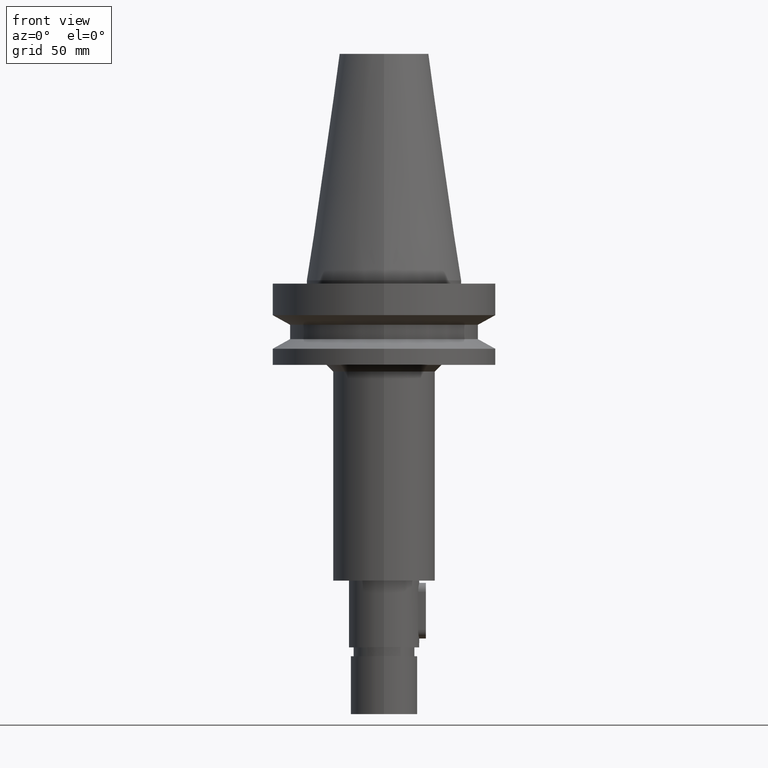
[diagram: clean part render]
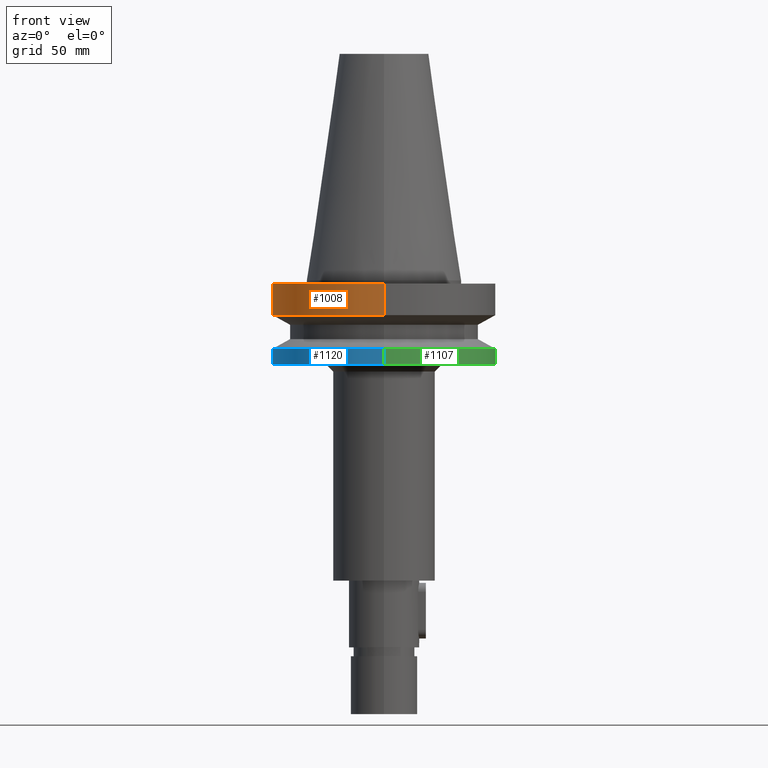
[diagram: same view with three faces highlighted in distinct colors, each labeled with its STEP entity id]
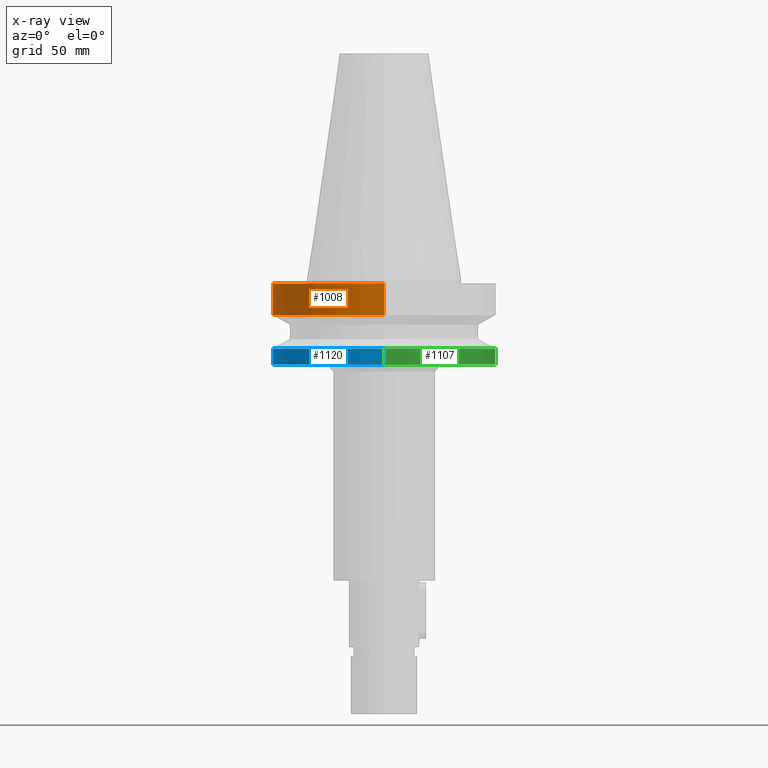
[diagram: x-ray of the same camera — body ghosted, the three highlighted faces saturated]
A machine part, front view with three faces highlighted in distinct colors.
The next image is the same camera in x-ray (body ghosted, the three faces saturated) — at least one of them is partly hidden behind the body in this view.
Their STEP definitions:

[orange] entity #1008 — the highlighted cylindrical surface (partial cylindrical patch) has radius 50 mm, axis along (0, 0, -1).
#178=CARTESIAN_POINT('',(0.E0,2.653074825673E-14,-1.5E0));
#179=DIRECTION('',(0.E0,0.E0,-1.E0));
#180=DIRECTION('',(0.E0,-1.E0,0.E0));
#181=AXIS2_PLACEMENT_3D('',#178,#179,#180);
#202=DIRECTION('',(0.E0,-1.605441053570E-14,-1.E0));
#203=VECTOR('',#202,1.416269223573E1);
#204=CARTESIAN_POINT('',(0.E0,5.E1,-1.5E0));
#205=LINE('',#204,#203);
#209=DIRECTION('',(0.E0,1.555271020646E-14,-1.E0));
#210=VECTOR('',#209,1.416269223573E1);
#211=CARTESIAN_POINT('',(0.E0,-5.E1,-1.5E0));
#212=LINE('',#211,#210);
#216=CARTESIAN_POINT('',(0.E0,1.006319759054E-14,-1.566269223573E1));
#217=DIRECTION('',(0.E0,0.E0,1.E0));
#218=DIRECTION('',(0.E0,1.E0,0.E0));
#219=AXIS2_PLACEMENT_3D('',#216,#217,#218);
#730=CARTESIAN_POINT('',(0.E0,5.E1,-1.5E0));
#731=CARTESIAN_POINT('',(0.E0,-5.E1,-1.5E0));
#732=VERTEX_POINT('',#730);
#733=VERTEX_POINT('',#731);
#734=CARTESIAN_POINT('',(0.E0,5.E1,-1.566269223573E1));
#735=VERTEX_POINT('',#734);
#736=CARTESIAN_POINT('',(1.224646799147E-14,-5.E1,-1.566269223573E1));
#737=VERTEX_POINT('',#736);
#996=CARTESIAN_POINT('',(0.E0,2.653074825673E-14,1.1664E2));
#997=DIRECTION('',(0.E0,0.E0,-1.E0));
#998=DIRECTION('',(0.E0,-1.E0,0.E0));
#999=AXIS2_PLACEMENT_3D('',#996,#997,#998);
#1000=CYLINDRICAL_SURFACE('',#999,5.E1);
#1001=ORIENTED_EDGE('',*,*,#986,.F.);
#1002=ORIENTED_EDGE('',*,*,#972,.F.);
#1003=ORIENTED_EDGE('',*,*,#990,.T.);
#1005=ORIENTED_EDGE('',*,*,#1004,.F.);
#1006=EDGE_LOOP('',(#1001,#1002,#1003,#1005));
#1007=FACE_OUTER_BOUND('',#1006,.F.);
#182=CIRCLE('',#181,5.E1);
#220=CIRCLE('',#219,5.E1);
#972=EDGE_CURVE('',#733,#732,#182,.T.);
#986=EDGE_CURVE('',#732,#735,#205,.T.);
#990=EDGE_CURVE('',#733,#737,#212,.T.);
#1004=EDGE_CURVE('',#735,#737,#220,.T.);
#1008=ADVANCED_FACE('',(#1007),#1000,.T.);

[blue] entity #1120 — the highlighted cylindrical surface (partial cylindrical patch) has radius 50 mm, axis along (0, 0, -1).
#291=CARTESIAN_POINT('',(0.E0,0.E0,-3.073730776427E1));
#292=DIRECTION('',(0.E0,0.E0,-1.E0));
#293=DIRECTION('',(0.E0,-1.E0,0.E0));
#294=AXIS2_PLACEMENT_3D('',#291,#292,#293);
#322=DIRECTION('',(0.E0,3.130707843087E-14,-1.E0));
#323=VECTOR('',#322,7.262692235730E0);
#324=CARTESIAN_POINT('',(0.E0,5.E1,-3.073730776427E1));
#325=LINE('',#324,#323);
#329=DIRECTION('',(0.E0,-3.032873222990E-14,-1.E0));
#330=VECTOR('',#329,7.262692235730E0);
#331=CARTESIAN_POINT('',(0.E0,-5.E1,-3.073730776427E1));
#332=LINE('',#331,#330);
#336=CARTESIAN_POINT('',(0.E0,2.653074825673E-14,-3.8E1));
#337=DIRECTION('',(0.E0,0.E0,1.E0));
#338=DIRECTION('',(0.E0,1.E0,0.E0));
#339=AXIS2_PLACEMENT_3D('',#336,#337,#338);
#746=CARTESIAN_POINT('',(0.E0,5.E1,-3.073730776427E1));
#747=VERTEX_POINT('',#746);
#748=CARTESIAN_POINT('',(0.E0,-5.E1,-3.073730776427E1));
#749=VERTEX_POINT('',#748);
#750=CARTESIAN_POINT('',(0.E0,5.E1,-3.8E1));
#751=VERTEX_POINT('',#750);
#752=CARTESIAN_POINT('',(0.E0,-5.E1,-3.8E1));
#753=VERTEX_POINT('',#752);
#1108=CARTESIAN_POINT('',(0.E0,2.653074825673E-14,1.1664E2));
#1109=DIRECTION('',(0.E0,0.E0,-1.E0));
#1110=DIRECTION('',(0.E0,-1.E0,0.E0));
#1111=AXIS2_PLACEMENT_3D('',#1108,#1109,#1110);
#1112=CYLINDRICAL_SURFACE('',#1111,5.E1);
#1113=ORIENTED_EDGE('',*,*,#1098,.F.);
#1114=ORIENTED_EDGE('',*,*,#1075,.F.);
#1115=ORIENTED_EDGE('',*,*,#1102,.T.);
#1117=ORIENTED_EDGE('',*,*,#1116,.F.);
#1118=EDGE_LOOP('',(#1113,#1114,#1115,#1117));
#1119=FACE_OUTER_BOUND('',#1118,.F.);
#295=CIRCLE('',#294,5.E1);
#340=CIRCLE('',#339,5.E1);
#1075=EDGE_CURVE('',#749,#747,#295,.T.);
#1098=EDGE_CURVE('',#747,#751,#325,.T.);
#1102=EDGE_CURVE('',#749,#753,#332,.T.);
#1116=EDGE_CURVE('',#751,#753,#340,.T.);
#1120=ADVANCED_FACE('',(#1119),#1112,.T.);

[green] entity #1107 — the highlighted cylindrical surface (partial cylindrical patch) has radius 50 mm, axis along (0, 0, -1).
#306=CARTESIAN_POINT('',(0.E0,0.E0,-3.073730776427E1));
#307=DIRECTION('',(0.E0,0.E0,-1.E0));
#308=DIRECTION('',(0.E0,1.E0,0.E0));
#309=AXIS2_PLACEMENT_3D('',#306,#307,#308);
#322=DIRECTION('',(0.E0,3.130707843087E-14,-1.E0));
#323=VECTOR('',#322,7.262692235730E0);
#324=CARTESIAN_POINT('',(0.E0,5.E1,-3.073730776427E1));
#325=LINE('',#324,#323);
#329=DIRECTION('',(0.E0,-3.032873222990E-14,-1.E0));
#330=VECTOR('',#329,7.262692235730E0);
#331=CARTESIAN_POINT('',(0.E0,-5.E1,-3.073730776427E1));
#332=LINE('',#331,#330);
#344=CARTESIAN_POINT('',(0.E0,2.653074825673E-14,-3.8E1));
#345=DIRECTION('',(0.E0,0.E0,1.E0));
#346=DIRECTION('',(0.E0,-1.E0,0.E0));
#347=AXIS2_PLACEMENT_3D('',#344,#345,#346);
#746=CARTESIAN_POINT('',(0.E0,5.E1,-3.073730776427E1));
#747=VERTEX_POINT('',#746);
#748=CARTESIAN_POINT('',(0.E0,-5.E1,-3.073730776427E1));
#749=VERTEX_POINT('',#748);
#750=CARTESIAN_POINT('',(0.E0,5.E1,-3.8E1));
#751=VERTEX_POINT('',#750);
#752=CARTESIAN_POINT('',(0.E0,-5.E1,-3.8E1));
#753=VERTEX_POINT('',#752);
#1093=CARTESIAN_POINT('',(0.E0,2.653074825673E-14,1.1664E2));
#1094=DIRECTION('',(0.E0,0.E0,-1.E0));
#1095=DIRECTION('',(0.E0,-1.E0,0.E0));
#1096=AXIS2_PLACEMENT_3D('',#1093,#1094,#1095);
#1097=CYLINDRICAL_SURFACE('',#1096,5.E1);
#1099=ORIENTED_EDGE('',*,*,#1098,.T.);
#1101=ORIENTED_EDGE('',*,*,#1100,.F.);
#1103=ORIENTED_EDGE('',*,*,#1102,.F.);
#1104=ORIENTED_EDGE('',*,*,#1086,.F.);
#1105=EDGE_LOOP('',(#1099,#1101,#1103,#1104));
#1106=FACE_OUTER_BOUND('',#1105,.F.);
#310=CIRCLE('',#309,5.E1);
#348=CIRCLE('',#347,5.E1);
#1086=EDGE_CURVE('',#747,#749,#310,.T.);
#1098=EDGE_CURVE('',#747,#751,#325,.T.);
#1100=EDGE_CURVE('',#753,#751,#348,.T.);
#1102=EDGE_CURVE('',#749,#753,#332,.T.);
#1107=ADVANCED_FACE('',(#1106),#1097,.T.);